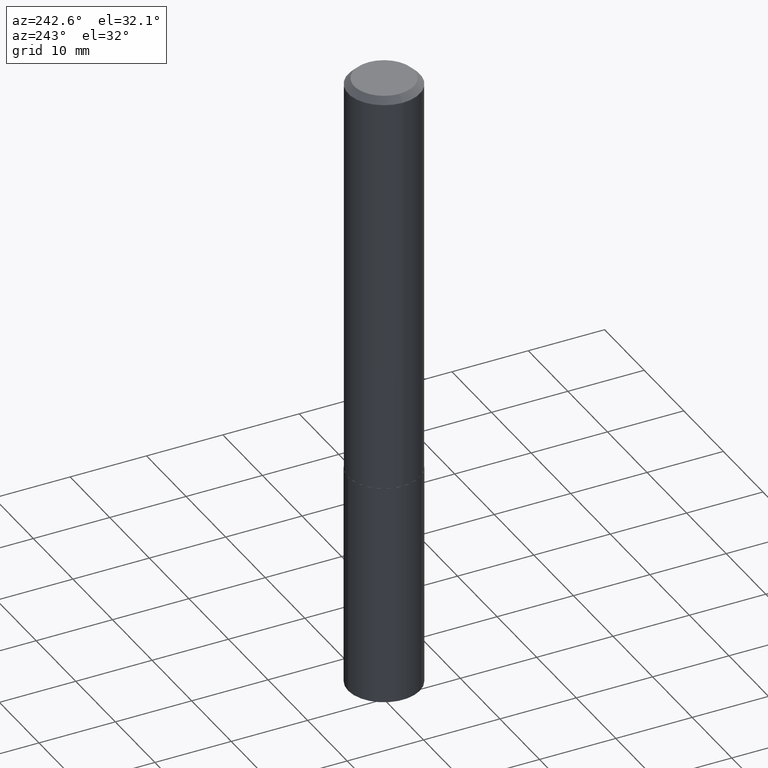
[diagram: clean part render]
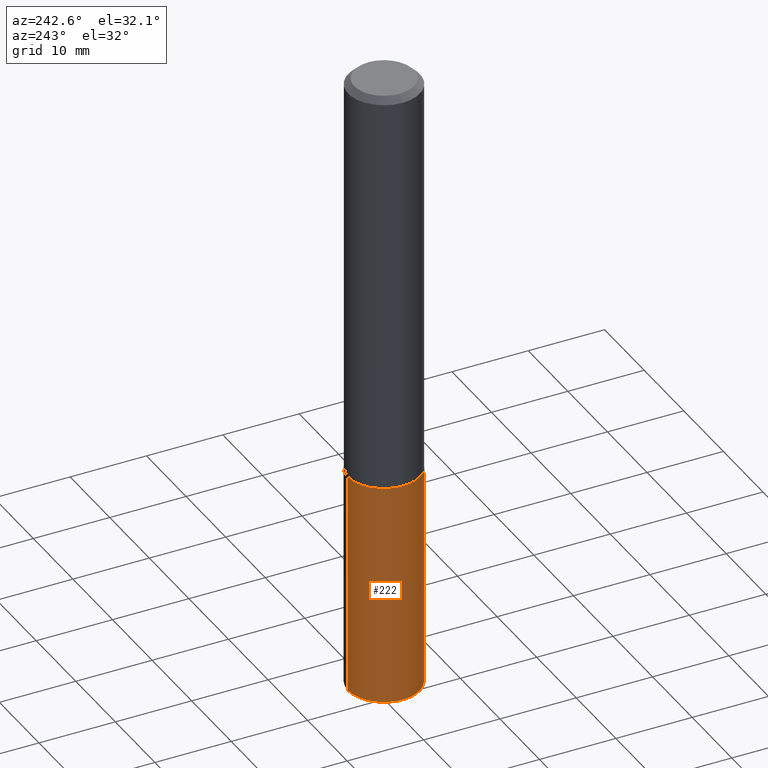
[diagram: same view with one face highlighted and labeled with its STEP entity id]
A machine part, auxiliary view. The second image highlights one B-rep face of the part: STEP entity #222.
In plain terms, the highlighted cylindrical surface (partial cylindrical patch) has radius 4.7003 mm, axis along (-0, 0, 1).
Its self-contained STEP definition (entity closure, byte-faithful):
#2 = VECTOR ( 'NONE', #124, 39.37007874015748143 ) ;
#20 = VERTEX_POINT ( 'NONE', #347 ) ;
#32 = DIRECTION ( 'NONE',  ( -2.445315056571583283E-29, 3.491701517040638842E-15, 1.000000000000000000 ) ) ;
#37 = CARTESIAN_POINT ( 'NONE',  ( 7.965976169755803543E-29, -1.137381066311781496E-14, -3.257516001940621742 ) ) ;
#50 = ORIENTED_EDGE ( 'NONE', *, *, #364, .T. ) ;
#65 = CARTESIAN_POINT ( 'NONE',  ( 5.141353618123632749E-29, -7.340490366783830084E-15, -2.102400000000000713 ) ) ;
#70 = DIRECTION ( 'NONE',  ( -2.445315056571583283E-29, 3.491701517040638842E-15, 1.000000000000000000 ) ) ;
#84 = AXIS2_PLACEMENT_3D ( 'NONE', #37, #70, #343 ) ;
#97 = AXIS2_PLACEMENT_3D ( 'NONE', #65, #308, #175 ) ;
#107 = CARTESIAN_POINT ( 'NONE',  ( 1.314859332524116418E-15, 0.1850499999999926370, -2.102400000000001157 ) ) ;
#110 = CARTESIAN_POINT ( 'NONE',  ( 5.141353618123632749E-29, -7.340490366783830084E-15, -2.102400000000000713 ) ) ;
#116 = VERTEX_POINT ( 'NONE', #188 ) ;
#119 = VECTOR ( 'NONE', #229, 39.37007874015748143 ) ;
#124 = DIRECTION ( 'NONE',  ( -2.445315056571583283E-29, 3.491701517040638842E-15, 1.000000000000000000 ) ) ;
#126 = AXIS2_PLACEMENT_3D ( 'NONE', #110, #32, #385 ) ;
#141 = FACE_OUTER_BOUND ( 'NONE', #179, .T. ) ;
#149 = CIRCLE ( 'NONE', #97, 0.1850499999999999923 ) ;
#159 = CARTESIAN_POINT ( 'NONE',  ( -1.292197243505792011E-15, -0.1850500000000073197, -2.102399999999999824 ) ) ;
#175 = DIRECTION ( 'NONE',  ( -6.982962677686265133E-15, -1.000000000000000000, 2.952551195530141356E-15 ) ) ;
#179 = EDGE_LOOP ( 'NONE', ( #180, #258, #50, #333 ) ) ;
#180 = ORIENTED_EDGE ( 'NONE', *, *, #233, .F. ) ;
#181 = LINE ( 'NONE', #107, #119 ) ;
#188 = CARTESIAN_POINT ( 'NONE',  ( 1.314859332524144620E-15, 0.1850499999999885847, -3.257516001940622186 ) ) ;
#199 = EDGE_CURVE ( 'NONE', #20, #285, #149, .T. ) ;
#222 = ADVANCED_FACE ( 'NONE', ( #141 ), #261, .T. ) ;
#229 = DIRECTION ( 'NONE',  ( -2.445315056571583283E-29, 3.491701517040638842E-15, 1.000000000000000000 ) ) ;
#233 = EDGE_CURVE ( 'NONE', #116, #20, #181, .T. ) ;
#242 = LINE ( 'NONE', #159, #2 ) ;
#248 = CIRCLE ( 'NONE', #84, 0.1850499999999999923 ) ;
#258 = ORIENTED_EDGE ( 'NONE', *, *, #366, .T. ) ;
#261 = CYLINDRICAL_SURFACE ( 'NONE', #126, 0.1850499999999999923 ) ;
#285 = VERTEX_POINT ( 'NONE', #300 ) ;
#300 = CARTESIAN_POINT ( 'NONE',  ( -1.292197243505792011E-15, -0.1850500000000073197, -2.102399999999999824 ) ) ;
#308 = DIRECTION ( 'NONE',  ( -2.445315056571583283E-29, 3.491701517040638842E-15, 1.000000000000000000 ) ) ;
#315 = VERTEX_POINT ( 'NONE', #374 ) ;
#333 = ORIENTED_EDGE ( 'NONE', *, *, #199, .F. ) ;
#343 = DIRECTION ( 'NONE',  ( -6.982962677686265133E-15, -1.000000000000000000, 2.952551195530141356E-15 ) ) ;
#347 = CARTESIAN_POINT ( 'NONE',  ( 1.314859332524144817E-15, 0.1850499999999926370, -2.102400000000001157 ) ) ;
#364 = EDGE_CURVE ( 'NONE', #315, #285, #242, .T. ) ;
#366 = EDGE_CURVE ( 'NONE', #116, #315, #248, .T. ) ;
#374 = CARTESIAN_POINT ( 'NONE',  ( -1.292197243505763612E-15, -0.1850500000000113165, -3.257516001940621297 ) ) ;
#385 = DIRECTION ( 'NONE',  ( -6.982962677686265133E-15, -1.000000000000000000, 2.952551195530141356E-15 ) ) ;